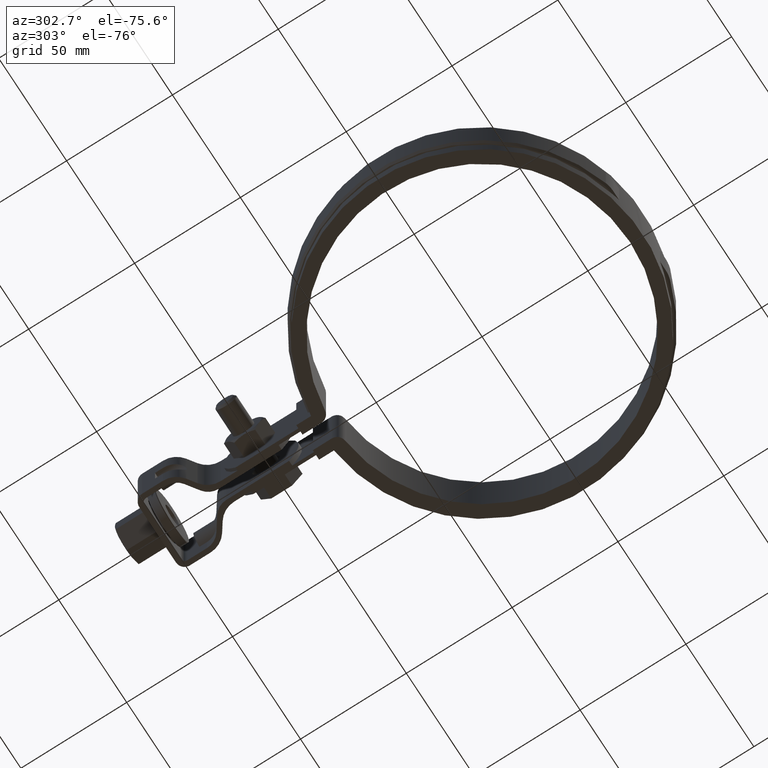
[diagram: clean part render]
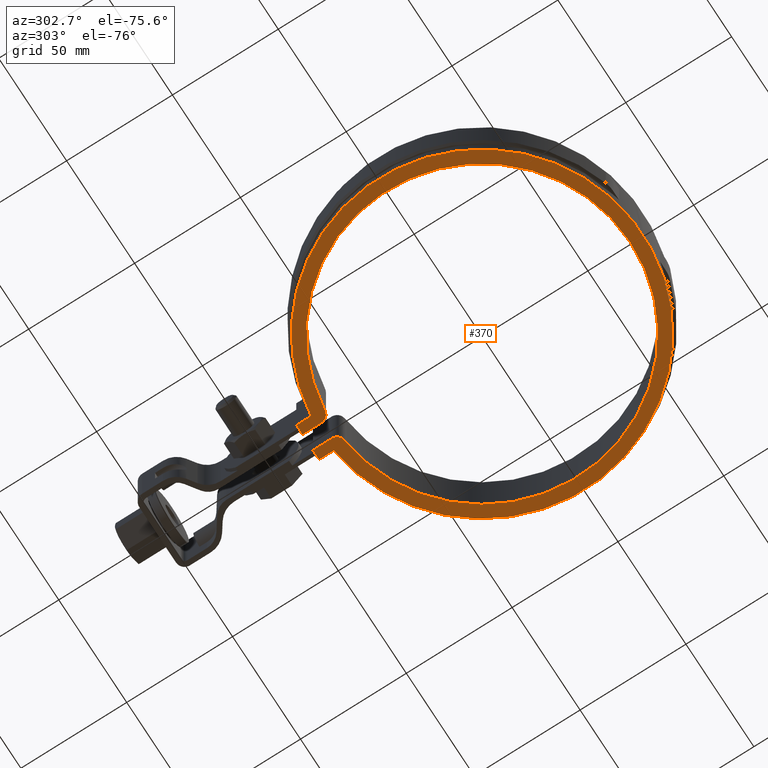
[diagram: same view with one face highlighted and labeled with its STEP entity id]
A machine part, auxiliary view. The second image highlights one B-rep face of the part: STEP entity #370.
In plain terms, the highlighted planar face has unit normal (0, 0, -1).
Its self-contained STEP definition (entity closure, byte-faithful):
#370 = ADVANCED_FACE( '', ( #613 ), #614, .T. );
#613 = FACE_OUTER_BOUND( '', #1748, .T. );
#614 = PLANE( '', #1749 );
#1748 = EDGE_LOOP( '', ( #3605, #3606, #3607, #3608, #3609, #3610, #3611, #3612, #3613, #3614 ) );
#1749 = AXIS2_PLACEMENT_3D( '', #3615, #3616, #3617 );
#3605 = ORIENTED_EDGE( '', *, *, #5040, .T. );
#3606 = ORIENTED_EDGE( '', *, *, #5150, .F. );
#3607 = ORIENTED_EDGE( '', *, *, #5151, .F. );
#3608 = ORIENTED_EDGE( '', *, *, #5152, .F. );
#3609 = ORIENTED_EDGE( '', *, *, #5153, .F. );
#3610 = ORIENTED_EDGE( '', *, *, #5154, .F. );
#3611 = ORIENTED_EDGE( '', *, *, #5091, .T. );
#3612 = ORIENTED_EDGE( '', *, *, #5050, .T. );
#3613 = ORIENTED_EDGE( '', *, *, #5104, .T. );
#3614 = ORIENTED_EDGE( '', *, *, #5120, .T. );
#3615 = CARTESIAN_POINT( '', ( -3.46944695195361E-015, -1.38777878078145E-014, -33.5000000000000 ) );
#3616 = DIRECTION( '', ( 0.000000000000000, 0.000000000000000, -1.00000000000000 ) );
#3617 = DIRECTION( '', ( 0.110671936758893, 0.993856992939143, 0.000000000000000 ) );
#5040 = EDGE_CURVE( '', #5563, #5561, #5564, .T. );
#5050 = EDGE_CURVE( '', #5583, #5581, #5584, .T. );
#5091 = EDGE_CURVE( '', #5652, #5583, #5656, .T. );
#5104 = EDGE_CURVE( '', #5581, #5680, #5682, .T. );
#5120 = EDGE_CURVE( '', #5680, #5563, #5709, .T. );
#5150 = EDGE_CURVE( '', #5751, #5561, #5752, .T. );
#5151 = EDGE_CURVE( '', #5753, #5751, #5754, .T. );
#5152 = EDGE_CURVE( '', #5755, #5753, #5756, .T. );
#5153 = EDGE_CURVE( '', #5757, #5755, #5758, .T. );
#5154 = EDGE_CURVE( '', #5652, #5757, #5759, .T. );
#5561 = VERTEX_POINT( '', #7259 );
#5563 = VERTEX_POINT( '', #7262 );
#5564 = LINE( '', #7263, #7264 );
#5581 = VERTEX_POINT( '', #7291 );
#5583 = VERTEX_POINT( '', #7294 );
#5584 = LINE( '', #7295, #7296 );
#5652 = VERTEX_POINT( '', #8158 );
#5656 = LINE( '', #8164, #8165 );
#5680 = VERTEX_POINT( '', #8200 );
#5682 = CIRCLE( '', #8203, 75.9000000000000 );
#5709 = LINE( '', #8248, #8249 );
#5751 = VERTEX_POINT( '', #8304 );
#5752 = LINE( '', #8305, #8306 );
#5753 = VERTEX_POINT( '', #8307 );
#5754 = CIRCLE( '', #8308, 4.00000000000000 );
#5755 = VERTEX_POINT( '', #8309 );
#5756 = CIRCLE( '', #8310, 69.9000000000000 );
#5757 = VERTEX_POINT( '', #8311 );
#5758 = CIRCLE( '', #8312, 4.00000000000000 );
#5759 = LINE( '', #8313, #8314 );
#7259 = CARTESIAN_POINT( '', ( -3.80000000000000, 82.4000000000000, -33.5000000000000 ) );
#7262 = CARTESIAN_POINT( '', ( -8.40000000000000, 82.4000000000000, -33.5000000000000 ) );
#7263 = CARTESIAN_POINT( '', ( -8.40000000000001, 82.4000000000000, -33.5000000000000 ) );
#7264 = VECTOR( '', #9364, 1000.00000000000 );
#7291 = CARTESIAN_POINT( '', ( 8.40000000000001, 75.4337457640809, -33.5000000000000 ) );
#7294 = CARTESIAN_POINT( '', ( 8.39999999999999, 82.4000000000000, -33.5000000000000 ) );
#7295 = CARTESIAN_POINT( '', ( 8.39999999999999, 82.4000000000000, -33.5000000000000 ) );
#7296 = VECTOR( '', #9373, 1000.00000000000 );
#8158 = CARTESIAN_POINT( '', ( 3.80000000000001, 82.4000000000000, -33.5000000000000 ) );
#8164 = CARTESIAN_POINT( '', ( 6.20000000000000, 82.4000000000000, -33.5000000000000 ) );
#8165 = VECTOR( '', #9397, 1000.00000000000 );
#8200 = CARTESIAN_POINT( '', ( -8.39999999999998, 75.4337457640810, -33.5000000000000 ) );
#8203 = AXIS2_PLACEMENT_3D( '', #9416, #9417, #9418 );
#8248 = CARTESIAN_POINT( '', ( -8.40000000000000, 75.4337457640810, -33.5000000000000 ) );
#8249 = VECTOR( '', #9440, 1000.00000000000 );
#8304 = CARTESIAN_POINT( '', ( -3.80000000000000, 73.4872097714970, -33.5000000000000 ) );
#8305 = CARTESIAN_POINT( '', ( -3.80000000000000, 73.4872097714970, -33.5000000000000 ) );
#8306 = VECTOR( '', #9502, 1000.00000000000 );
#8307 = CARTESIAN_POINT( '', ( -7.37780784844385, 69.5095529503063, -33.5000000000000 ) );
#8308 = AXIS2_PLACEMENT_3D( '', #9503, #9504, #9505 );
#8309 = CARTESIAN_POINT( '', ( 7.37780784844383, 69.5095529503064, -33.5000000000000 ) );
#8310 = AXIS2_PLACEMENT_3D( '', #9506, #9507, #9508 );
#8311 = CARTESIAN_POINT( '', ( 3.80000000000000, 73.4872097714970, -33.5000000000000 ) );
#8312 = AXIS2_PLACEMENT_3D( '', #9509, #9510, #9511 );
#8313 = CARTESIAN_POINT( '', ( 3.80000000000000, 82.4000000000000, -33.5000000000000 ) );
#8314 = VECTOR( '', #9512, 1000.00000000000 );
#9364 = DIRECTION( '', ( 1.00000000000000, -2.77555756156289E-017, 0.000000000000000 ) );
#9373 = DIRECTION( '', ( -5.55111512312578E-017, -1.00000000000000, 0.000000000000000 ) );
#9397 = DIRECTION( '', ( 1.00000000000000, -2.77555756156289E-017, 0.000000000000000 ) );
#9416 = CARTESIAN_POINT( '', ( -3.46944695195361E-015, -1.38777878078145E-014, -33.5000000000000 ) );
#9417 = DIRECTION( '', ( 0.000000000000000, 0.000000000000000, -1.00000000000000 ) );
#9418 = DIRECTION( '', ( 1.00000000000000, 0.000000000000000, 0.000000000000000 ) );
#9440 = DIRECTION( '', ( 5.55111512312578E-017, 1.00000000000000, 0.000000000000000 ) );
#9502 = DIRECTION( '', ( 6.17161236645595E-017, 1.00000000000000, 0.000000000000000 ) );
#9503 = CARTESIAN_POINT( '', ( -7.80000000000000, 73.4872097714970, -33.5000000000000 ) );
#9504 = DIRECTION( '', ( 0.000000000000000, 0.000000000000000, 1.00000000000000 ) );
#9505 = DIRECTION( '', ( 1.00000000000000, 0.000000000000000, 0.000000000000000 ) );
#9506 = CARTESIAN_POINT( '', ( 0.000000000000000, 0.000000000000000, -33.5000000000000 ) );
#9507 = DIRECTION( '', ( 0.000000000000000, 0.000000000000000, -1.00000000000000 ) );
#9508 = DIRECTION( '', ( 1.00000000000000, 0.000000000000000, 0.000000000000000 ) );
#9509 = CARTESIAN_POINT( '', ( 7.80000000000000, 73.4872097714970, -33.5000000000000 ) );
#9510 = DIRECTION( '', ( 0.000000000000000, 0.000000000000000, 1.00000000000000 ) );
#9511 = DIRECTION( '', ( -1.00000000000000, 0.000000000000000, 0.000000000000000 ) );
#9512 = DIRECTION( '', ( -6.00481203222741E-017, -1.00000000000000, 0.000000000000000 ) );